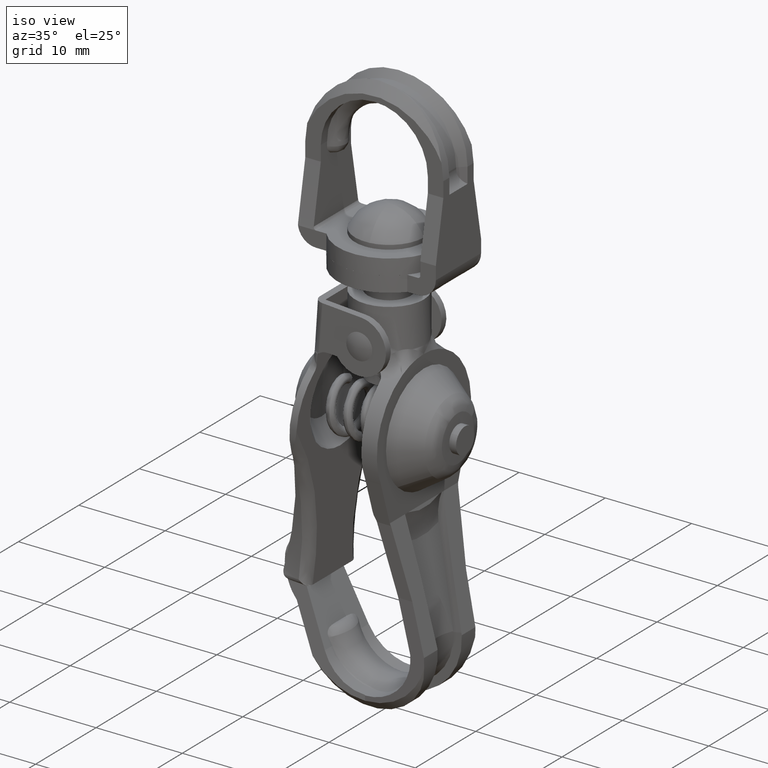
[diagram: clean part render]
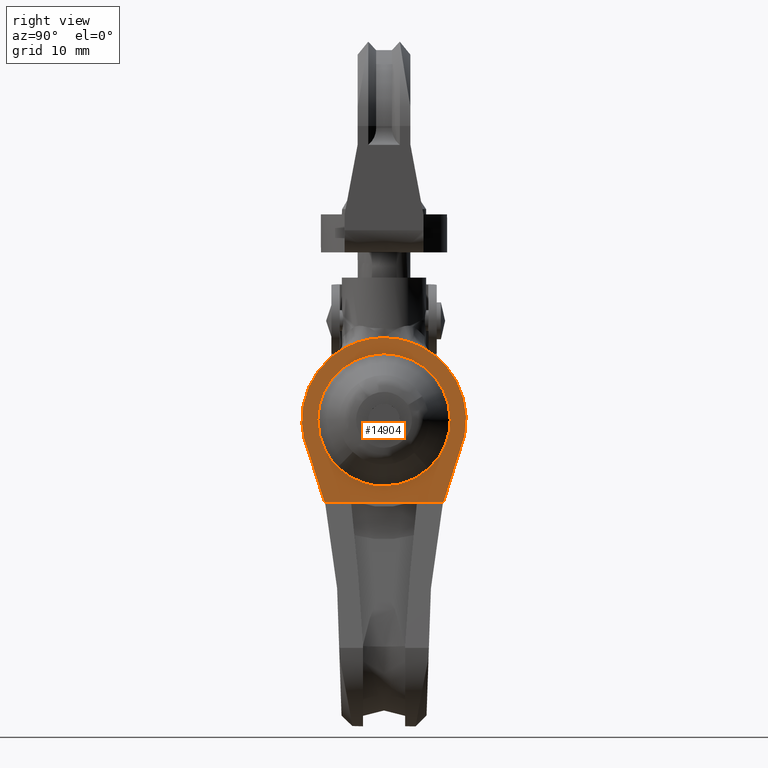
[diagram: tour spotlight — one face highlighted and labeled with its STEP entity id]
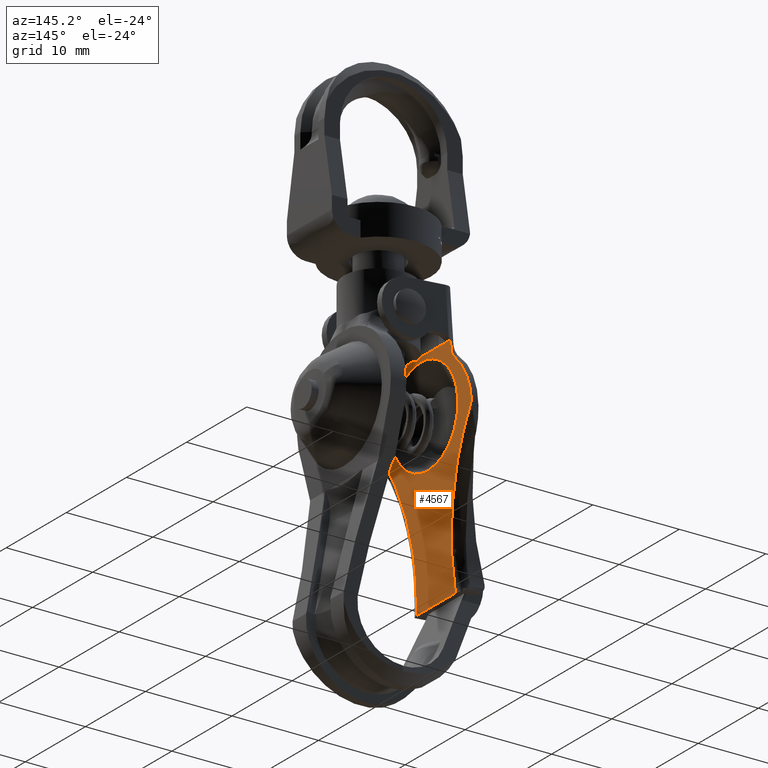
[diagram: tour spotlight — one face highlighted and labeled with its STEP entity id]
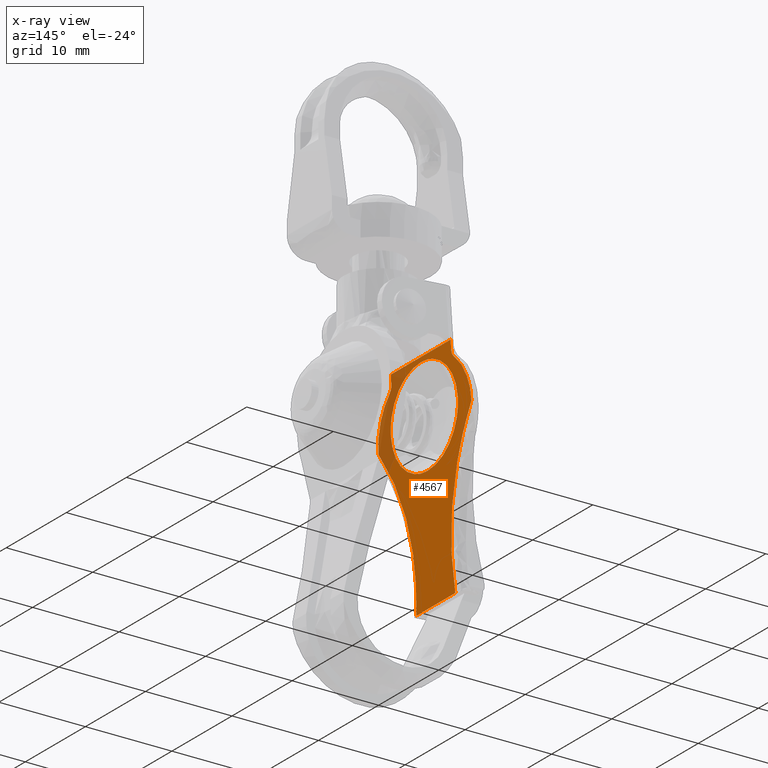
[diagram: x-ray of the same camera — body ghosted, this tour face saturated]
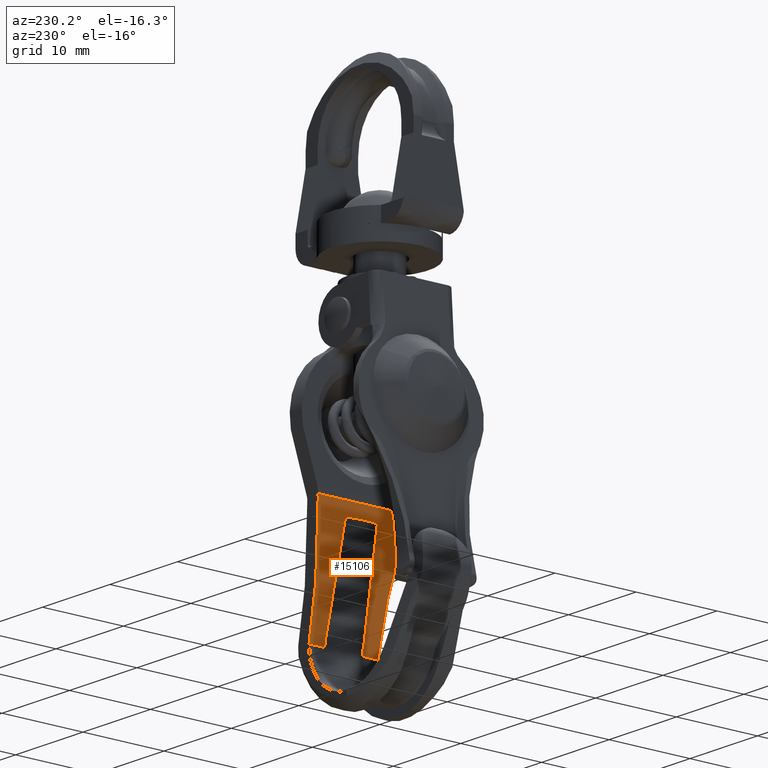
[diagram: tour spotlight — one face highlighted and labeled with its STEP entity id]
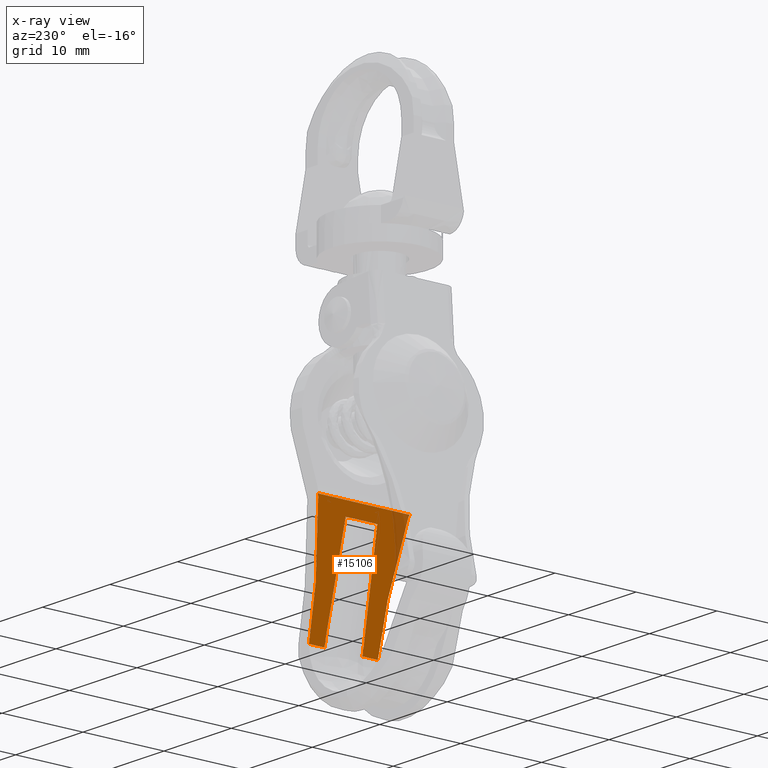
[diagram: x-ray of the same camera — body ghosted, this tour face saturated]
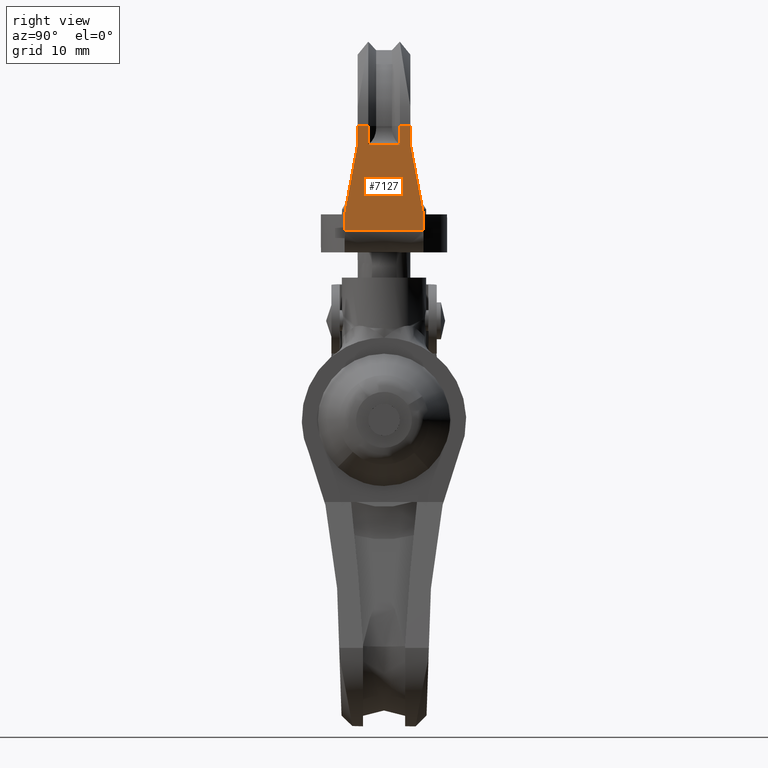
[diagram: tour spotlight — one face highlighted and labeled with its STEP entity id]
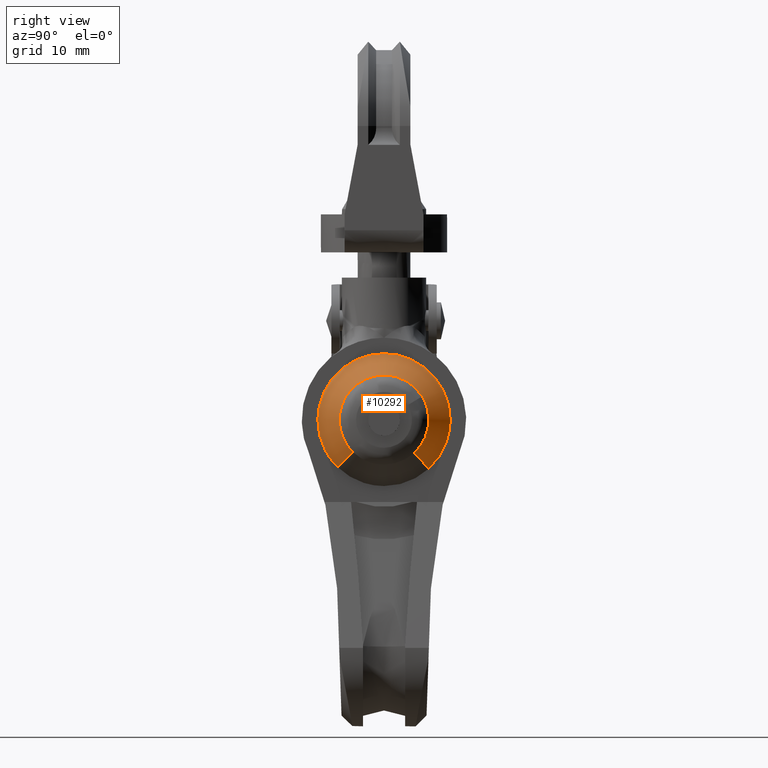
[diagram: tour spotlight — one face highlighted and labeled with its STEP entity id]
A machine part: a face-by-face anatomy tour. The part has 230 B-rep faces; the first image is the clean iso view, then the 5 largest visible faces are spotlighted one at a time (largest first), each with its STEP entity span.

Face 1 — right view, entity #14904. In plain terms, the highlighted face is a freeform B-spline surface patch.
Definition (entity closure, byte-faithful):
#10166=CARTESIAN_POINT('',(4.0,-6.282310757708459,-9.400009797004525));
#10167=VERTEX_POINT('',#10166);
#10168=CARTESIAN_POINT('',(3.999999908098824,-4.381484690174220,-13.902233298943580));
#10169=VERTEX_POINT('',#10168);
#10170=CARTESIAN_POINT('',(4.0,-6.282310757708459,-9.400009797004525));
#10171=CARTESIAN_POINT('',(3.999999987725713,-6.282552166164535,-10.001325196831379));
#10172=CARTESIAN_POINT('',(3.999999965848791,-6.127219019829703,-11.073071832433190));
#10173=CARTESIAN_POINT('',(3.999999934185992,-5.472287995299033,-12.624227518828899));
#10174=CARTESIAN_POINT('',(3.999999916655634,-4.812601486783598,-13.483035847839989));
#10175=CARTESIAN_POINT('',(3.999999908098824,-4.381484690174220,-13.902233298943580));
#10176=B_SPLINE_CURVE_WITH_KNOTS('',3,(#10170,#10171,#10172,#10173,#10174,#10175),.UNSPECIFIED.,.F.,.U.,(4,1,1,4),(0.000000019860854,1.803899093483449,3.215626579584005,5.019525653221613),.UNSPECIFIED.);
#10177=EDGE_CURVE('',#10167,#10169,#10176,.T.);
#10240=CARTESIAN_POINT('',(4.000000091585284,4.244267453788509,-14.031814153131190));
#10241=VERTEX_POINT('',#10240);
#10247=CARTESIAN_POINT('',(4.0,6.282310757708459,-9.400008202995997));
#10248=VERTEX_POINT('',#10247);
#10249=CARTESIAN_POINT('',(4.000000091585284,4.244267453788509,-14.031814153131190));
#10250=CARTESIAN_POINT('',(4.000000087599374,4.464263719303781,-13.830231854269810));
#10251=CARTESIAN_POINT('',(4.000000077834865,4.931574780994437,-13.336404537354341));
#10252=CARTESIAN_POINT('',(4.000000062233324,5.466593794066007,-12.547377391993130));
#10253=CARTESIAN_POINT('',(4.000000043757398,5.906973635297845,-11.612981387766309));
#10254=CARTESIAN_POINT('',(4.000000023600149,6.205621039893044,-10.593554304155340));
#10255=CARTESIAN_POINT('',(4.000000008045609,6.282361475271343,-9.806904192740959));
#10256=CARTESIAN_POINT('',(4.0,6.282310757708459,-9.400008202995997));
#10257=B_SPLINE_CURVE_WITH_KNOTS('',3,(#10249,#10250,#10251,#10252,#10253,#10254,#10255,#10256),.UNSPECIFIED.,.F.,.U.,(4,1,1,1,1,4),(0.000000019615642,0.895166538569844,2.034483611414755,2.848257183194273,3.987582912513413,5.208269949920592),.UNSPECIFIED.);
#10258=EDGE_CURVE('',#10241,#10248,#10257,.T.);
#10260=CARTESIAN_POINT('',(4.0,0.0,-3.117698242291691));
#10261=VERTEX_POINT('',#10260);
#10262=CARTESIAN_POINT('',(4.0,6.282310757708459,-9.400008202995997));
#10263=CARTESIAN_POINT('',(4.000000000000008,6.282459223600674,-8.886020877158636));
#10264=CARTESIAN_POINT('',(3.999999999999994,6.190308231705976,-8.140841201798764));
#10265=CARTESIAN_POINT('',(4.000000000000003,5.862535167656848,-7.083761198941629));
#10266=CARTESIAN_POINT('',(4.0,5.410454425298866,-6.127704132944793));
#10267=CARTESIAN_POINT('',(4.000000000000001,4.732744271155975,-5.213968387805409));
#10268=CARTESIAN_POINT('',(3.999999999999997,3.920896995665570,-4.459874097404843));
#10269=CARTESIAN_POINT('',(4.000000000000002,3.152402630003380,-3.939539182630027));
#10270=CARTESIAN_POINT('',(3.999999999999987,2.223759935391784,-3.493278047729835));
#10271=CARTESIAN_POINT('',(4.000000000000042,1.182123109955919,-3.191241499028454));
#10272=CARTESIAN_POINT('',(3.999999999999969,0.385477415637908,-3.117658640468805));
#10273=CARTESIAN_POINT('',(4.0,0.0,-3.117698242291691));
#10274=B_SPLINE_CURVE_WITH_KNOTS('',3,(#10262,#10263,#10264,#10265,#10266,#10267,#10268,#10269,#10270,#10271,#10272,#10273),.UNSPECIFIED.,.F.,.U.,(4,1,1,1,1,1,1,1,1,4),(0.000000071187536,1.541915364638282,2.235784921109220,3.315134190525560,4.702889801432589,5.627988978707870,6.630247569106126,7.478316299314182,8.711857471058385,9.868292131745784),.UNSPECIFIED.);
#10275=EDGE_CURVE('',#10248,#10261,#10274,.T.);
#10277=CARTESIAN_POINT('',(4.0,0.0,-3.117698242291691));
#10278=CARTESIAN_POINT('',(3.999999999999987,-0.616807176497829,-3.117390773140198));
#10279=CARTESIAN_POINT('',(4.000000000000014,-1.618848871377278,-3.266578945817832));
#10280=CARTESIAN_POINT('',(3.999999999999993,-3.005272125220711,-3.830885493932853));
#10281=CARTESIAN_POINT('',(4.000000000000016,-4.183703495019237,-4.628623076048933));
#10282=CARTESIAN_POINT('',(3.999999999999968,-5.151545510485970,-5.709831441024777));
#10283=CARTESIAN_POINT('',(4.000000000000049,-5.749094976638916,-6.795773063566027));
#10284=CARTESIAN_POINT('',(3.999999999999940,-6.167003015150018,-7.986690967143487));
#10285=CARTESIAN_POINT('',(4.000000000000072,-6.282524288068323,-8.834617193555070));
#10286=CARTESIAN_POINT('',(4.0,-6.282310757708459,-9.400009797004525));
#10287=B_SPLINE_CURVE_WITH_KNOTS('',3,(#10277,#10278,#10279,#10280,#10281,#10282,#10283,#10284,#10285,#10286),.UNSPECIFIED.,.F.,.U.,(4,1,1,1,1,1,1,4),(0.000000070909206,1.850302955480803,3.006748045116300,4.471581653161652,6.090581314328082,7.324122598240320,8.172191405664236,9.868293030160988),.UNSPECIFIED.);
#10288=EDGE_CURVE('',#10261,#10167,#10287,.T.);
#10307=CARTESIAN_POINT('',(4.0,0.0,-15.682319757708710));
#10308=VERTEX_POINT('',#10307);
#10309=CARTESIAN_POINT('',(3.999999908098824,-4.381484690174220,-13.902233298943580));
#10310=CARTESIAN_POINT('',(3.999999914930615,-4.055772409627495,-14.219336172336559));
#10311=CARTESIAN_POINT('',(3.999999926268380,-3.515231051732872,-14.641500770166230));
#10312=CARTESIAN_POINT('',(3.999999945350660,-2.605465450565364,-15.139055767119000));
#10313=CARTESIAN_POINT('',(3.999999968220213,-1.515133570677433,-15.551786206494951));
#10314=CARTESIAN_POINT('',(3.999999987816475,-0.580862436599336,-15.682524203705160));
#10315=CARTESIAN_POINT('',(4.0,0.0,-15.682319757708710));
#10316=B_SPLINE_CURVE_WITH_KNOTS('',3,(#10309,#10310,#10311,#10312,#10313,#10314,#10315),.UNSPECIFIED.,.F.,.U.,(4,1,1,1,4),(0.000000019911540,1.363716158257331,2.045577113063966,3.106239663768498,4.848766390766880),.UNSPECIFIED.);
#10317=EDGE_CURVE('',#10169,#10308,#10316,.T.);
#10319=CARTESIAN_POINT('',(4.0,0.0,-15.682319757708710));
#10320=CARTESIAN_POINT('',(4.000000012569972,0.582520521405747,-15.682506361541400));
#10321=CARTESIAN_POINT('',(4.000000035611611,1.650322197353102,-15.532740895851550));
#10322=CARTESIAN_POINT('',(4.000000066769608,3.094253267504583,-14.932256087635800));
#10323=CARTESIAN_POINT('',(4.000000083863873,3.886439846863292,-14.359834063416359));
#10324=CARTESIAN_POINT('',(4.000000091585284,4.244267453788509,-14.031814153131190));
#10325=B_SPLINE_CURVE_WITH_KNOTS('',3,(#10319,#10320,#10321,#10322,#10323,#10324),.UNSPECIFIED.,.F.,.U.,(4,1,1,4),(0.000000019174023,1.747509381140115,3.203766226647398,4.660023797411585),.UNSPECIFIED.);
#10326=EDGE_CURVE('',#10308,#10241,#10325,.T.);
#11049=CARTESIAN_POINT('',(3.999999999999910,2.608254958142945,-17.200009000000200));
#11050=VERTEX_POINT('',#11049);
#11058=CARTESIAN_POINT('',(3.999999999999910,-2.608254958142945,-17.200009000000200));
#11059=VERTEX_POINT('',#11058);
#11094=CARTESIAN_POINT('',(4.0,3.131505772549280,-17.200009000000200));
#11095=VERTEX_POINT('',#11094);
#11170=CARTESIAN_POINT('',(4.0,-3.131517695079855,-17.200009000000200));
#11171=VERTEX_POINT('',#11170);
#11207=CARTESIAN_POINT('',(3.999999999999910,2.608254958142945,-17.200009000000200));
#11208=CARTESIAN_POINT('',(4.0,3.131505772549280,-17.200009000000200));
#11209=QUASI_UNIFORM_CURVE('',1,(#11207,#11208),.UNSPECIFIED.,.F.,.U.);
#11210=EDGE_CURVE('',#11050,#11095,#11209,.T.);
#11222=CARTESIAN_POINT('',(4.0,-3.131517695079855,-17.200009000000200));
#11223=CARTESIAN_POINT('',(3.999999999999910,-2.608254958142945,-17.200009000000200));
#11224=QUASI_UNIFORM_CURVE('',1,(#11222,#11223),.UNSPECIFIED.,.F.,.U.);
#11225=EDGE_CURVE('',#11171,#11059,#11224,.T.);
#13511=CARTESIAN_POINT('',(4.0,-3.559455147856810,-2.459527817085305));
#13512=VERTEX_POINT('',#13511);
#13590=CARTESIAN_POINT('',(4.0,0.0,-1.600009000000195));
#13591=VERTEX_POINT('',#13590);
#13592=CARTESIAN_POINT('',(4.0,0.0,-1.600009000000195));
#13593=CARTESIAN_POINT('',(4.000000000000013,-0.635301669824627,-1.599844299324102));
#13594=CARTESIAN_POINT('',(3.999999999999981,-1.867303544148489,-1.751432026261389));
#13595=CARTESIAN_POINT('',(4.000000000000005,-3.028467967556760,-2.187079070168278));
#13596=CARTESIAN_POINT('',(4.0,-3.559455147856810,-2.459527817085305));
#13597=B_SPLINE_CURVE_WITH_KNOTS('',3,(#13592,#13593,#13594,#13595,#13596),.UNSPECIFIED.,.F.,.U.,(4,1,4),(6.349063E-009,1.905872101332426,3.696257110565624),.UNSPECIFIED.);
#13598=EDGE_CURVE('',#13591,#13512,#13597,.T.);
#13722=CARTESIAN_POINT('',(4.0,3.559455147856770,-2.459527817085290));
#13723=VERTEX_POINT('',#13722);
#13724=CARTESIAN_POINT('',(4.0,3.559455147856770,-2.459527817085290));
#13725=CARTESIAN_POINT('',(4.000000000000006,2.994235680051950,-2.169467273457617));
#13726=CARTESIAN_POINT('',(3.999999999999980,1.828819961189265,-1.742133624644907));
#13727=CARTESIAN_POINT('',(4.000000000000014,0.596803661992894,-1.599897554448365));
#13728=CARTESIAN_POINT('',(4.0,0.0,-1.600009000000195));
#13729=B_SPLINE_CURVE_WITH_KNOTS('',3,(#13724,#13725,#13726,#13727,#13728),.UNSPECIFIED.,.F.,.U.,(4,1,4),(6.348926E-009,1.905872101332354,3.696257110565583),.UNSPECIFIED.);
#13730=EDGE_CURVE('',#13723,#13591,#13729,.T.);
#14088=CARTESIAN_POINT('',(4.0,7.110999569992010,-12.605267977925820));
#14089=VERTEX_POINT('',#14088);
#14090=CARTESIAN_POINT('',(4.0,7.110999569992010,-12.605267977925820));
#14091=CARTESIAN_POINT('',(4.000000000000004,7.403113635350942,-11.957779636374450));
#14092=CARTESIAN_POINT('',(4.000000000000004,7.746713145779738,-10.791673553235359));
#14093=CARTESIAN_POINT('',(3.999999999999993,7.839179070510871,-9.118976616378383));
#14094=CARTESIAN_POINT('',(4.000000000000007,7.671801408517498,-7.827547969376512));
#14095=CARTESIAN_POINT('',(4.000000000000020,7.291246706536303,-6.520032548742353));
#14096=CARTESIAN_POINT('',(3.999999999999989,6.758360740986817,-5.432256117119735));
#14097=CARTESIAN_POINT('',(4.000000000000012,5.929405763059388,-4.275431112124584));
#14098=CARTESIAN_POINT('',(3.999999999999976,4.938409655798489,-3.289819182324259));
#14099=CARTESIAN_POINT('',(4.000000000000019,4.026643355011308,-2.699049493401312));
#14100=CARTESIAN_POINT('',(4.0,3.559455147856770,-2.459527817085290));
#14101=B_SPLINE_CURVE_WITH_KNOTS('',3,(#14090,#14091,#14092,#14093,#14094,#14095,#14096,#14097,#14098,#14099,#14100),.UNSPECIFIED.,.F.,.U.,(4,1,1,1,1,1,1,1,4),(0.000000047701818,2.130929637993971,3.613337600115781,5.003090593122395,6.022202551318122,7.689893058105985,8.616401732064052,10.284106819913410,11.859134565636211),.UNSPECIFIED.);
#14102=EDGE_CURVE('',#14089,#13723,#14101,.T.);
#14611=CARTESIAN_POINT('',(4.0,5.655064014168990,-17.200009000000200));
#14612=VERTEX_POINT('',#14611);
#14613=CARTESIAN_POINT('',(4.0,7.110999569992010,-12.605267977925820));
#14614=CARTESIAN_POINT('',(4.0,5.655064014168990,-17.200009000000200));
#14615=QUASI_UNIFORM_CURVE('',1,(#14613,#14614),.UNSPECIFIED.,.F.,.U.);
#14616=EDGE_CURVE('',#14089,#14612,#14615,.T.);
#14664=CARTESIAN_POINT('',(4.0,-5.655093261884220,-17.200009000000250));
#14665=VERTEX_POINT('',#14664);
#14671=CARTESIAN_POINT('',(4.0,-7.111058140726910,-12.605138033159440));
#14672=VERTEX_POINT('',#14671);
#14673=CARTESIAN_POINT('',(4.0,-5.655093261884220,-17.200009000000250));
#14674=CARTESIAN_POINT('',(4.0,-7.111058140726910,-12.605138033159440));
#14675=QUASI_UNIFORM_CURVE('',1,(#14673,#14674),.UNSPECIFIED.,.F.,.U.);
#14676=EDGE_CURVE('',#14665,#14672,#14675,.T.);
#14853=CARTESIAN_POINT('',(4.0,-8.577829410457373,-17.979228383997871));
#14854=CARTESIAN_POINT('',(4.0,-8.577829410457373,-0.820788639678491));
#14855=CARTESIAN_POINT('',(4.0,8.577821097231228,-17.979228383997871));
#14856=CARTESIAN_POINT('',(4.0,8.577821097231228,-0.820788639678491));
#14857=B_SPLINE_SURFACE_WITH_KNOTS('',1,1,((#14853,#14855),(#14854,#14856)),.UNSPECIFIED.,.F.,.F.,.U.,(2,2),(2,2),(0.0,17.158439744319381),(0.0,17.155650507688598),.UNSPECIFIED.);
#14858=ORIENTED_EDGE('',*,*,#14102,.T.);
#14859=ORIENTED_EDGE('',*,*,#13730,.T.);
#14860=ORIENTED_EDGE('',*,*,#13598,.T.);
#14861=CARTESIAN_POINT('',(4.0,-3.559455147856810,-2.459527817085305));
#14862=CARTESIAN_POINT('',(4.0,-4.136622796152218,-2.755332754892852));
#14863=CARTESIAN_POINT('',(4.000000000000006,-4.984918672690774,-3.334302293469106));
#14864=CARTESIAN_POINT('',(4.0,-6.112902024661727,-4.483130514430114));
#14865=CARTESIAN_POINT('',(4.0,-6.945485871076445,-5.720970072600924));
#14866=CARTESIAN_POINT('',(4.000000000000003,-7.576082756782206,-7.307480392296463));
#14867=CARTESIAN_POINT('',(3.999999999999997,-7.830535484858508,-8.840490257769254));
#14868=CARTESIAN_POINT('',(4.000000000000002,-7.789460265503381,-10.141419401932160));
#14869=CARTESIAN_POINT('',(3.999999999999997,-7.582509000146570,-11.361065015660371));
#14870=CARTESIAN_POINT('',(4.0,-7.326863420235988,-12.126533511597160));
#14871=CARTESIAN_POINT('',(4.0,-7.111058140726910,-12.605138033159440));
#14872=B_SPLINE_CURVE_WITH_KNOTS('',3,(#14861,#14862,#14863,#14864,#14865,#14866,#14867,#14868,#14869,#14870,#14871),.UNSPECIFIED.,.F.,.U.,(4,1,1,1,1,1,1,1,4),(0.000000047700031,1.945614862676662,3.057397595970235,4.817737746377286,6.392710290191301,8.153049203772552,9.450140837512933,10.283983212917031,11.858992028308300),.UNSPECIFIED.);
#14873=EDGE_CURVE('',#13512,#14672,#14872,.T.);
#14874=ORIENTED_EDGE('',*,*,#14873,.T.);
#14875=ORIENTED_EDGE('',*,*,#14676,.F.);
#14876=CARTESIAN_POINT('',(4.0,-5.655093261884220,-17.200009000000250));
#14877=CARTESIAN_POINT('',(4.0,-3.131517695079855,-17.200009000000200));
#14878=QUASI_UNIFORM_CURVE('',1,(#14876,#14877),.UNSPECIFIED.,.F.,.U.);
#14879=EDGE_CURVE('',#14665,#11171,#14878,.T.);
#14880=ORIENTED_EDGE('',*,*,#14879,.T.);
#14881=ORIENTED_EDGE('',*,*,#11225,.T.);
#14882=CARTESIAN_POINT('',(3.999999999999910,-2.608254958142945,-17.200009000000200));
#14883=CARTESIAN_POINT('',(3.999999999999910,2.608254958142945,-17.200009000000200));
#14884=QUASI_UNIFORM_CURVE('',1,(#14882,#14883),.UNSPECIFIED.,.F.,.U.);
#14885=EDGE_CURVE('',#11059,#11050,#14884,.T.);
#14886=ORIENTED_EDGE('',*,*,#14885,.T.);
#14887=ORIENTED_EDGE('',*,*,#11210,.T.);
#14888=CARTESIAN_POINT('',(4.0,3.131505772549280,-17.200009000000200));
#14889=CARTESIAN_POINT('',(4.0,5.655064014168990,-17.200009000000200));
#14890=QUASI_UNIFORM_CURVE('',1,(#14888,#14889),.UNSPECIFIED.,.F.,.U.);
#14891=EDGE_CURVE('',#11095,#14612,#14890,.T.);
#14892=ORIENTED_EDGE('',*,*,#14891,.T.);
#14893=ORIENTED_EDGE('',*,*,#14616,.F.);
#14894=EDGE_LOOP('',(#14858,#14859,#14860,#14874,#14875,#14880,#14881,#14886,#14887,#14892,#14893));
#14895=FACE_OUTER_BOUND('',#14894,.T.);
#14896=ORIENTED_EDGE('',*,*,#10275,.F.);
#14897=ORIENTED_EDGE('',*,*,#10258,.F.);
#14898=ORIENTED_EDGE('',*,*,#10326,.F.);
#14899=ORIENTED_EDGE('',*,*,#10317,.F.);
#14900=ORIENTED_EDGE('',*,*,#10177,.F.);
#14901=ORIENTED_EDGE('',*,*,#10288,.F.);
#14902=EDGE_LOOP('',(#14896,#14897,#14898,#14899,#14900,#14901));
#14903=FACE_BOUND('',#14902,.T.);
#14904=ADVANCED_FACE('',(#14895,#14903),#14857,.F.);

Face 2 — auxiliary view, entity #4567. An x-ray twin of the same camera follows (body ghosted, this face saturated) — the face is partly hidden behind the body. In plain terms, the highlighted face is a freeform B-spline surface patch.
Definition (entity closure, byte-faithful):
#2290=CARTESIAN_POINT('',(-4.699999926960892,-4.249262095755214,-12.135136823011869));
#2291=VERTEX_POINT('',#2290);
#2297=CARTESIAN_POINT('',(-4.700000000000000,0.0,-14.106616932455630));
#2298=VERTEX_POINT('',#2297);
#2299=CARTESIAN_POINT('',(-4.699999926960892,-4.249262095755214,-12.135136823011869));
#2300=CARTESIAN_POINT('',(-4.699999932828142,-3.907917721639922,-12.539073908333300));
#2301=CARTESIAN_POINT('',(-4.699999945581369,-3.165961998880617,-13.197671364817930));
#2302=CARTESIAN_POINT('',(-4.699999966275907,-1.961996796675910,-13.796469957084110));
#2303=CARTESIAN_POINT('',(-4.699999984417538,-0.906555461902163,-14.059539828701681));
#2304=CARTESIAN_POINT('',(-4.699999995238688,-0.277001250868232,-14.106625598285641));
#2305=CARTESIAN_POINT('',(-4.700000000000000,0.0,-14.106616932455630));
#2306=B_SPLINE_CURVE_WITH_KNOTS('',3,(#2299,#2300,#2301,#2302,#2303,#2304,#2305),.UNSPECIFIED.,.F.,.U.,(4,1,1,1,4),(0.000000021888161,1.586491254625626,2.946327026799142,4.003992130923086,4.835003331236396),.UNSPECIFIED.);
#2307=EDGE_CURVE('',#2291,#2298,#2306,.T.);
#2309=CARTESIAN_POINT('',(-4.700000000000001,5.565097932455599,-8.541518407261645));
#2310=VERTEX_POINT('',#2309);
#2311=CARTESIAN_POINT('',(-4.700000000000000,0.0,-14.106616932455630));
#2312=CARTESIAN_POINT('',(-4.699999999999998,0.364237017933476,-14.106663654072840));
#2313=CARTESIAN_POINT('',(-4.700000000000011,1.001629532195385,-14.043808721457870));
#2314=CARTESIAN_POINT('',(-4.699999999999985,1.859607361198557,-13.806353054068200));
#2315=CARTESIAN_POINT('',(-4.700000000000014,2.717191350092024,-13.432571839887929));
#2316=CARTESIAN_POINT('',(-4.699999999999982,3.555105650584280,-12.872686926663089));
#2317=CARTESIAN_POINT('',(-4.700000000000030,4.310178955611933,-12.108235166196060));
#2318=CARTESIAN_POINT('',(-4.699999999999955,4.827206638337164,-11.354597656808661));
#2319=CARTESIAN_POINT('',(-4.700000000000049,5.222493939456833,-10.531965916782200));
#2320=CARTESIAN_POINT('',(-4.699999999999969,5.495576287551199,-9.611443385658843));
#2321=CARTESIAN_POINT('',(-4.700000000000013,5.565138719901327,-8.905753304884557));
#2322=CARTESIAN_POINT('',(-4.700000000000001,5.565097932455599,-8.541518407261645));
#2323=B_SPLINE_CURVE_WITH_KNOTS('',3,(#2311,#2312,#2313,#2314,#2315,#2316,#2317,#2318,#2319,#2320,#2321,#2322),.UNSPECIFIED.,.F.,.U.,(4,1,1,1,1,1,1,1,1,4),(0.000000082825347,1.092708795406505,1.912243581505662,2.663487401324893,3.892810237536286,4.917190947545786,5.873311815976607,6.624563133884786,7.648986932867148,8.741690574689143),.UNSPECIFIED.);
#2324=EDGE_CURVE('',#2298,#2310,#2323,.T.);
#2326=CARTESIAN_POINT('',(-4.700000000000000,0.0,-2.976421067544369));
#2327=VERTEX_POINT('',#2326);
#2328=CARTESIAN_POINT('',(-4.700000000000001,5.565097932455599,-8.541518407261645));
#2329=CARTESIAN_POINT('',(-4.700000000000012,5.565334843694945,-7.995146747099992));
#2330=CARTESIAN_POINT('',(-4.699999999999999,5.419750900557608,-7.016390329373357));
#2331=CARTESIAN_POINT('',(-4.699999999999994,4.842725404846407,-5.692735691198021));
#2332=CARTESIAN_POINT('',(-4.700000000000019,4.120515757622046,-4.743553026689695));
#2333=CARTESIAN_POINT('',(-4.700000000000023,3.346402298000902,-4.067619814227113));
#2334=CARTESIAN_POINT('',(-4.699999999999963,2.632872392696687,-3.615770734099845));
#2335=CARTESIAN_POINT('',(-4.700000000000067,1.839875416991214,-3.264243489355506));
#2336=CARTESIAN_POINT('',(-4.699999999999905,0.956104620114393,-3.031315077483682));
#2337=CARTESIAN_POINT('',(-4.700000000000059,0.318699863581495,-2.976398120024939));
#2338=CARTESIAN_POINT('',(-4.700000000000000,0.0,-2.976421067544369));
#2339=B_SPLINE_CURVE_WITH_KNOTS('',3,(#2328,#2329,#2330,#2331,#2332,#2333,#2334,#2335,#2336,#2337,#2338),.UNSPECIFIED.,.F.,.U.,(4,1,1,1,1,1,1,1,4),(0.000000083032413,1.639064999653646,2.936666057903187,4.302574649919320,5.190368780572831,6.009909293290786,6.829445949078416,7.785587440111962,8.741689906530686),.UNSPECIFIED.);
#2340=EDGE_CURVE('',#2310,#2327,#2339,.T.);
#2342=CARTESIAN_POINT('',(-4.700000073965660,-3.830760474520223,-4.504739747238347));
#2343=VERTEX_POINT('',#2342);
#2344=CARTESIAN_POINT('',(-4.700000000000000,0.0,-2.976421067544369));
#2345=CARTESIAN_POINT('',(-4.700000008073233,-0.418121801394013,-2.976329954705891));
#2346=CARTESIAN_POINT('',(-4.700000020394470,-1.056250708418042,-3.048704519853371));
#2347=CARTESIAN_POINT('',(-4.700000038777572,-2.008332295908005,-3.327325911825371));
#2348=CARTESIAN_POINT('',(-4.700000056163598,-2.908772705664858,-3.750044072474836));
#2349=CARTESIAN_POINT('',(-4.700000068110693,-3.527525216653646,-4.216863183565867));
#2350=CARTESIAN_POINT('',(-4.700000073965660,-3.830760474520223,-4.504739747238347));
#2351=B_SPLINE_CURVE_WITH_KNOTS('',3,(#2344,#2345,#2346,#2347,#2348,#2349,#2350),.UNSPECIFIED.,.F.,.U.,(4,1,1,1,4),(0.000000022112062,1.254343919885995,1.914528289929805,2.970804563797084,4.225148461557780),.UNSPECIFIED.);
#2352=EDGE_CURVE('',#2327,#2343,#2351,.T.);
#2437=CARTESIAN_POINT('',(-4.700000000000000,-5.565097932455599,-8.541519592738348));
#2438=VERTEX_POINT('',#2437);
#2439=CARTESIAN_POINT('',(-4.700000073965660,-3.830760474520223,-4.504739747238347));
#2440=CARTESIAN_POINT('',(-4.700000068626306,-4.137976278458866,-4.796142557842767));
#2441=CARTESIAN_POINT('',(-4.700000059646423,-4.548426041176421,-5.286232454416825));
#2442=CARTESIAN_POINT('',(-4.700000044340743,-5.033662391601021,-6.121561418178351));
#2443=CARTESIAN_POINT('',(-4.700000025859143,-5.437145143268937,-7.130219578483434));
#2444=CARTESIAN_POINT('',(-4.700000009913986,-5.565319244960505,-8.000451452284322));
#2445=CARTESIAN_POINT('',(-4.700000000000000,-5.565097932455599,-8.541519592738348));
#2446=B_SPLINE_CURVE_WITH_KNOTS('',3,(#2439,#2440,#2441,#2442,#2443,#2444,#2445),.UNSPECIFIED.,.F.,.U.,(4,1,1,1,4),(0.000000022636327,1.270278172085975,1.905420160598949,2.893408575297031,4.516542381720345),.UNSPECIFIED.);
#2447=EDGE_CURVE('',#2343,#2438,#2446,.T.);
#2449=CARTESIAN_POINT('',(-4.700000000000000,-5.565097932455599,-8.541519592738348));
#2450=CARTESIAN_POINT('',(-4.699999988006115,-5.565421675627639,-9.131634560687733));
#2451=CARTESIAN_POINT('',(-4.699999968573635,-5.411518829354144,-10.087735930822470));
#2452=CARTESIAN_POINT('',(-4.699999944254801,-4.881629307623168,-11.284255124349430));
#2453=CARTESIAN_POINT('',(-4.699999932328584,-4.472648301665108,-11.871038163543361));
#2454=CARTESIAN_POINT('',(-4.699999926960892,-4.249262095755214,-12.135136823011869));
#2455=B_SPLINE_CURVE_WITH_KNOTS('',3,(#2449,#2450,#2451,#2452,#2453,#2454),.UNSPECIFIED.,.F.,.U.,(4,1,1,4),(0.000000017219740,1.770221996515776,2.868973568571441,3.906688342577989),.UNSPECIFIED.);
#2456=EDGE_CURVE('',#2438,#2291,#2455,.T.);
#2859=CARTESIAN_POINT('',(-4.700000000000000,3.239909726624515,-27.772362000000101));
#2860=VERTEX_POINT('',#2859);
#2904=CARTESIAN_POINT('',(-4.700000000000000,7.731396394530660,-9.672229549134801));
#2905=VERTEX_POINT('',#2904);
#2925=CARTESIAN_POINT('',(-4.700000000000000,3.239909726624515,-27.772362000000101));
#2926=CARTESIAN_POINT('',(-4.700000000000006,2.992116297160789,-25.997982517896009));
#2927=CARTESIAN_POINT('',(-4.700000000000002,2.906770916938120,-23.246430522276299));
#2928=CARTESIAN_POINT('',(-4.700000000000006,3.428497975899189,-19.343317236856191));
#2929=CARTESIAN_POINT('',(-4.699999999999988,4.201351078059480,-16.451213624380639));
#2930=CARTESIAN_POINT('',(-4.700000000000054,5.562194306668626,-13.077771840373190));
#2931=CARTESIAN_POINT('',(-4.699999999999974,6.799386542222525,-10.963540630753471));
#2932=CARTESIAN_POINT('',(-4.700000000000000,7.731396394530660,-9.672229549134801));
#2933=B_SPLINE_CURVE_WITH_KNOTS('',3,(#2925,#2926,#2927,#2928,#2929,#2930,#2931,#2932),.UNSPECIFIED.,.F.,.U.,(4,1,1,1,1,4),(9.934606E-009,5.374703603967888,8.211353374381391,11.794473868233100,14.332536963769220,19.110049281713732),.UNSPECIFIED.);
#2934=EDGE_CURVE('',#2860,#2905,#2933,.T.);
#2969=CARTESIAN_POINT('',(-4.700000000000000,-3.239909726624525,-27.772362000000101));
#2970=VERTEX_POINT('',#2969);
#2978=CARTESIAN_POINT('',(-4.700000000000000,-7.731399461377510,-9.672225298801189));
#2979=VERTEX_POINT('',#2978);
#2980=CARTESIAN_POINT('',(-4.700000000000000,-7.731399461377510,-9.672225298801189));
#2981=CARTESIAN_POINT('',(-4.699999999999995,-7.003346520313648,-10.681104441553080));
#2982=CARTESIAN_POINT('',(-4.700000000000006,-5.724347773935593,-12.765250157452931));
#2983=CARTESIAN_POINT('',(-4.699999999999995,-4.173625848945585,-16.388977630858570));
#2984=CARTESIAN_POINT('',(-4.699999999999988,-3.319308417566068,-19.832085005644391));
#2985=CARTESIAN_POINT('',(-4.700000000000062,-2.914431065849807,-23.747781045282601));
#2986=CARTESIAN_POINT('',(-4.699999999999978,-3.019755144263978,-26.195135542299930));
#2987=CARTESIAN_POINT('',(-4.700000000000000,-3.239909726624525,-27.772362000000101));
#2988=B_SPLINE_CURVE_WITH_KNOTS('',3,(#2980,#2981,#2982,#2983,#2984,#2985,#2986,#2987),.UNSPECIFIED.,.F.,.U.,(4,1,1,1,1,4),(9.937892E-009,3.732430505483553,7.315577429857642,11.794477103085530,14.332540894738250,19.110054523004582),.UNSPECIFIED.);
#2989=EDGE_CURVE('',#2979,#2970,#2988,.T.);
#3092=CARTESIAN_POINT('',(-4.700000000000000,-4.979795897113280,-3.506155721737450));
#3093=VERTEX_POINT('',#3092);
#3094=CARTESIAN_POINT('',(-4.700000000000000,-5.332761139936580,-4.286219198872191));
#3095=VERTEX_POINT('',#3094);
#3096=CARTESIAN_POINT('',(-4.700000000000000,-4.979795897113280,-3.506155721737450));
#3097=CARTESIAN_POINT('',(-4.699999999999998,-4.979248000476573,-3.662520138137680));
#3098=CARTESIAN_POINT('',(-4.700000000000008,-5.047100755756099,-3.956605787977030));
#3099=CARTESIAN_POINT('',(-4.699999999999997,-5.228865928719370,-4.195454473379677));
#3100=CARTESIAN_POINT('',(-4.700000000000000,-5.332761139936580,-4.286219198872191));
#3101=B_SPLINE_CURVE_WITH_KNOTS('',3,(#3096,#3097,#3098,#3099,#3100),.UNSPECIFIED.,.F.,.U.,(4,1,4),(0.000000052691409,0.468960591273866,0.882771037230586),.UNSPECIFIED.);
#3102=EDGE_CURVE('',#3093,#3095,#3101,.T.);
#3269=CARTESIAN_POINT('',(-4.700000000000000,4.979793897113219,-3.506156584903440));
#3270=VERTEX_POINT('',#3269);
#3296=CARTESIAN_POINT('',(-4.700000000000000,5.332759014936540,-4.286219961853270));
#3297=VERTEX_POINT('',#3296);
#3298=CARTESIAN_POINT('',(-4.700000000000000,5.332759014936540,-4.286219961853270));
#3299=CARTESIAN_POINT('',(-4.699999999999999,5.228950657482556,-4.195388679559120));
#3300=CARTESIAN_POINT('',(-4.700000000000001,5.047199940215996,-3.956550638753997));
#3301=CARTESIAN_POINT('',(-4.700000000000006,4.979396048234783,-3.662493815196271));
#3302=CARTESIAN_POINT('',(-4.700000000000000,4.979793897113219,-3.506156584903440));
#3303=B_SPLINE_CURVE_WITH_KNOTS('',3,(#3298,#3299,#3300,#3301,#3302),.UNSPECIFIED.,.F.,.U.,(4,1,4),(0.000000052375318,0.413771772269819,0.882689958082987),.UNSPECIFIED.);
#3304=EDGE_CURVE('',#3297,#3270,#3303,.T.);
#3338=CARTESIAN_POINT('',(-4.700000000000000,-4.979795897113280,-2.469963805232120));
#3339=VERTEX_POINT('',#3338);
#3340=CARTESIAN_POINT('',(-4.700000000000000,-4.979795897113280,-2.469963805232120));
#3341=CARTESIAN_POINT('',(-4.700000000000000,-4.979795897113280,-3.506155721737450));
#3342=QUASI_UNIFORM_CURVE('',1,(#3340,#3341),.UNSPECIFIED.,.F.,.U.);
#3343=EDGE_CURVE('',#3339,#3093,#3342,.T.);
#3389=CARTESIAN_POINT('',(-4.700000000000000,4.979793897113230,-2.469963805232120));
#3390=VERTEX_POINT('',#3389);
#3391=CARTESIAN_POINT('',(-4.700000000000000,4.979793897113219,-3.506156584903440));
#3392=CARTESIAN_POINT('',(-4.700000000000000,4.979793897113230,-2.469963805232120));
#3393=QUASI_UNIFORM_CURVE('',1,(#3391,#3392),.UNSPECIFIED.,.F.,.U.);
#3394=EDGE_CURVE('',#3270,#3390,#3393,.T.);
#3707=CARTESIAN_POINT('',(-4.700000000000000,-4.200000000000315,-2.469963805236120));
#3708=VERTEX_POINT('',#3707);
#3746=CARTESIAN_POINT('',(-4.700000000000000,4.199997999999815,-2.469963805236120));
#3747=VERTEX_POINT('',#3746);
#3829=CARTESIAN_POINT('',(-4.700000000000000,4.199997999999815,-2.469963805236120));
#3830=CARTESIAN_POINT('',(-4.700000000000000,-4.200000000000315,-2.469963805236120));
#3831=QUASI_UNIFORM_CURVE('',1,(#3829,#3830),.UNSPECIFIED.,.F.,.U.);
#3832=EDGE_CURVE('',#3747,#3708,#3831,.T.);
#4158=CARTESIAN_POINT('',(-4.700000000000000,-4.200000000000315,-2.469963805236120));
#4159=CARTESIAN_POINT('',(-4.700000000000000,-4.979795897113280,-2.469963805232120));
#4160=QUASI_UNIFORM_CURVE('',1,(#4158,#4159),.UNSPECIFIED.,.F.,.U.);
#4161=EDGE_CURVE('',#3708,#3339,#4160,.T.);
#4182=CARTESIAN_POINT('',(-4.700000000000000,4.979793897113230,-2.469963805232120));
#4183=CARTESIAN_POINT('',(-4.700000000000000,4.199997999999815,-2.469963805236120));
#4184=QUASI_UNIFORM_CURVE('',1,(#4182,#4183),.UNSPECIFIED.,.F.,.U.);
#4185=EDGE_CURVE('',#3390,#3747,#4184,.T.);
#4298=CARTESIAN_POINT('',(-4.700000000000000,-7.731399461377510,-9.672225298801189));
#4299=CARTESIAN_POINT('',(-4.699999999999999,-7.737889653908590,-9.260217633559023));
#4300=CARTESIAN_POINT('',(-4.700000000000010,-7.666437830830978,-8.276348149590790));
#4301=CARTESIAN_POINT('',(-4.699999999999980,-7.247200129480238,-6.835154358026952));
#4302=CARTESIAN_POINT('',(-4.700000000000035,-6.447448105408100,-5.419278940141067));
#4303=CARTESIAN_POINT('',(-4.699999999999976,-5.738980289646424,-4.640276397515229));
#4304=CARTESIAN_POINT('',(-4.700000000000000,-5.332761139936580,-4.286219198872191));
#4305=B_SPLINE_CURVE_WITH_KNOTS('',3,(#4298,#4299,#4300,#4301,#4302,#4303,#4304),.UNSPECIFIED.,.F.,.U.,(4,1,1,1,4),(0.000000012051494,1.236194137481041,2.947856890538198,4.469325125319093,6.085889829111908),.UNSPECIFIED.);
#4306=EDGE_CURVE('',#2979,#3095,#4305,.T.);
#4326=CARTESIAN_POINT('',(-4.700000000000000,5.332759014936540,-4.286219961853270));
#4327=CARTESIAN_POINT('',(-4.700000000000012,5.738970190445698,-4.640283758181726));
#4328=CARTESIAN_POINT('',(-4.699999999999978,6.404522824937704,-5.372063034258615));
#4329=CARTESIAN_POINT('',(-4.700000000000022,7.093870204130865,-6.555006534741118));
#4330=CARTESIAN_POINT('',(-4.699999999999984,7.607954741272897,-7.958565829820037));
#4331=CARTESIAN_POINT('',(-4.700000000000016,7.742125502480931,-9.006639957333555));
#4332=CARTESIAN_POINT('',(-4.700000000000000,7.731396394530660,-9.672229549134801));
#4333=B_SPLINE_CURVE_WITH_KNOTS('',3,(#4326,#4327,#4328,#4329,#4330,#4331,#4332),.UNSPECIFIED.,.F.,.U.,(4,1,1,1,4),(0.000000012052106,1.616565536625616,2.947858387261695,4.088953870604007,6.085892919109572),.UNSPECIFIED.);
#4334=EDGE_CURVE('',#3297,#2905,#4333,.T.);
#4505=CARTESIAN_POINT('',(-4.700000000000000,3.239909726624515,-27.772362000000101));
#4506=CARTESIAN_POINT('',(-4.700000000000000,-3.239909726624525,-27.772362000000101));
#4507=QUASI_UNIFORM_CURVE('',1,(#4505,#4506),.UNSPECIFIED.,.F.,.U.);
#4508=EDGE_CURVE('',#2860,#2970,#4507,.T.);
#4540=CARTESIAN_POINT('',(-4.700000000000000,8.504089380165961,-1.206109064444416));
#4541=CARTESIAN_POINT('',(-4.700000000000000,-8.504045027891138,-1.206109064444416));
#4542=CARTESIAN_POINT('',(-4.700000000000000,8.504089380165961,-29.036217419451020));
#4543=CARTESIAN_POINT('',(-4.700000000000000,-8.504045027891138,-29.036217419451020));
#4544=B_SPLINE_SURFACE_WITH_KNOTS('',1,1,((#4540,#4542),(#4541,#4543)),.UNSPECIFIED.,.F.,.F.,.U.,(2,2),(2,2),(0.0,17.008134408057099),(0.0,27.830108355006601),.UNSPECIFIED.);
#4545=ORIENTED_EDGE('',*,*,#4306,.F.);
#4546=ORIENTED_EDGE('',*,*,#2989,.T.);
#4547=ORIENTED_EDGE('',*,*,#4508,.F.);
#4548=ORIENTED_EDGE('',*,*,#2934,.T.);
#4549=ORIENTED_EDGE('',*,*,#4334,.F.);
#4550=ORIENTED_EDGE('',*,*,#3304,.T.);
#4551=ORIENTED_EDGE('',*,*,#3394,.T.);
#4552=ORIENTED_EDGE('',*,*,#4185,.T.);
#4553=ORIENTED_EDGE('',*,*,#3832,.T.);
#4554=ORIENTED_EDGE('',*,*,#4161,.T.);
#4555=ORIENTED_EDGE('',*,*,#3343,.T.);
#4556=ORIENTED_EDGE('',*,*,#3102,.T.);
#4557=EDGE_LOOP('',(#4545,#4546,#4547,#4548,#4549,#4550,#4551,#4552,#4553,#4554,#4555,#4556));
#4558=FACE_OUTER_BOUND('',#4557,.T.);
#4559=ORIENTED_EDGE('',*,*,#2324,.F.);
#4560=ORIENTED_EDGE('',*,*,#2307,.F.);
#4561=ORIENTED_EDGE('',*,*,#2456,.F.);
#4562=ORIENTED_EDGE('',*,*,#2447,.F.);
#4563=ORIENTED_EDGE('',*,*,#2352,.F.);
#4564=ORIENTED_EDGE('',*,*,#2340,.F.);
#4565=EDGE_LOOP('',(#4559,#4560,#4561,#4562,#4563,#4564));
#4566=FACE_BOUND('',#4565,.T.);
#4567=ADVANCED_FACE('',(#4558,#4566),#4544,.T.);

Face 3 — auxiliary view, entity #15106. An x-ray twin of the same camera follows (body ghosted, this face saturated) — the face is partly hidden behind the body. In plain terms, the highlighted face is a freeform B-spline surface patch.
Definition (entity closure, byte-faithful):
#12710=CARTESIAN_POINT('',(5.244801804046450,-2.294434478214925,-30.480513803963500));
#12711=VERTEX_POINT('',#12710);
#12720=CARTESIAN_POINT('',(5.244801804046440,-2.351537033079890,-30.480513803963451));
#12721=VERTEX_POINT('',#12720);
#12722=CARTESIAN_POINT('',(5.244801804046450,-2.294434478214925,-30.480513803963500));
#12723=CARTESIAN_POINT('',(5.244801804046440,-2.351537033079890,-30.480513803963451));
#12724=QUASI_UNIFORM_CURVE('',1,(#12722,#12723),.UNSPECIFIED.,.F.,.U.);
#12725=EDGE_CURVE('',#12711,#12721,#12724,.T.);
#12743=CARTESIAN_POINT('',(5.244801804046420,2.351522033080275,-30.480513803963451));
#12744=VERTEX_POINT('',#12743);
#12755=CARTESIAN_POINT('',(5.244801804046450,2.294419478215335,-30.480513803963500));
#12756=VERTEX_POINT('',#12755);
#12757=CARTESIAN_POINT('',(5.244801804046420,2.351522033080275,-30.480513803963451));
#12758=CARTESIAN_POINT('',(5.244801804046450,2.294419478215335,-30.480513803963500));
#12759=QUASI_UNIFORM_CURVE('',1,(#12757,#12758),.UNSPECIFIED.,.F.,.U.);
#12760=EDGE_CURVE('',#12744,#12756,#12759,.T.);
#12788=CARTESIAN_POINT('',(2.714611556111920,-1.955615449096945,-18.747732627071802));
#12789=VERTEX_POINT('',#12788);
#12790=CARTESIAN_POINT('',(5.244801804046490,-2.351537033079878,-30.480513803963490));
#12791=CARTESIAN_POINT('',(3.863416343993329,-2.160543378290121,-24.074871644456177));
#12792=CARTESIAN_POINT('',(2.714611556111920,-1.955615449096945,-18.747732627071802));
#12800=(BOUNDED_CURVE()B_SPLINE_CURVE(2,(#12790,#12791,#12792),.UNSPECIFIED.,.F.,.U.)CURVE()GEOMETRIC_REPRESENTATION_ITEM()QUASI_UNIFORM_CURVE()RATIONAL_B_SPLINE_CURVE((1.0,0.998386334815300,1.0))REPRESENTATION_ITEM(''));
#12801=EDGE_CURVE('',#12721,#12789,#12800,.T.);
#12803=CARTESIAN_POINT('',(2.714611556111935,1.955600449097365,-18.747732627071802));
#12804=VERTEX_POINT('',#12803);
#12815=CARTESIAN_POINT('',(2.714611556111968,1.955600449097376,-18.747732627071770));
#12816=CARTESIAN_POINT('',(3.863416343993405,2.160528378290537,-24.074871644456511));
#12817=CARTESIAN_POINT('',(5.244801804046483,2.351522033080284,-30.480513803963468));
#12825=(BOUNDED_CURVE()B_SPLINE_CURVE(2,(#12815,#12816,#12817),.UNSPECIFIED.,.F.,.U.)CURVE()GEOMETRIC_REPRESENTATION_ITEM()QUASI_UNIFORM_CURVE()RATIONAL_B_SPLINE_CURVE((1.0,0.998386334815381,1.0))REPRESENTATION_ITEM(''));
#12826=EDGE_CURVE('',#12804,#12744,#12825,.T.);
#12844=CARTESIAN_POINT('',(2.714611556111935,1.955600449097365,-18.747732627071802));
#12845=CARTESIAN_POINT('',(2.714611556111920,-1.955615449096945,-18.747732627071802));
#12846=QUASI_UNIFORM_CURVE('',1,(#12844,#12845),.UNSPECIFIED.,.F.,.U.);
#12847=EDGE_CURVE('',#12804,#12789,#12846,.T.);
#12909=CARTESIAN_POINT('',(5.388414534095780,-2.371269370228240,-31.146462436585200));
#12910=VERTEX_POINT('',#12909);
#12932=CARTESIAN_POINT('',(5.388414534095780,-2.371269370228240,-31.146462436585200));
#12933=CARTESIAN_POINT('',(5.341094378626845,-2.327074199716955,-30.927033470788359));
#12934=CARTESIAN_POINT('',(5.293008403259313,-2.301344529911866,-30.704053310650121));
#12935=CARTESIAN_POINT('',(5.244801804046450,-2.294434478214925,-30.480513803963500));
#12936=B_SPLINE_CURVE_WITH_KNOTS('',3,(#12932,#12933,#12934,#12935),.UNSPECIFIED.,.F.,.U.,(4,4),(7.334079E-010,0.686349811888093),.UNSPECIFIED.);
#12937=EDGE_CURVE('',#12910,#12711,#12936,.T.);
#12942=CARTESIAN_POINT('',(5.388414534095780,2.371254370228645,-31.146462436585200));
#12943=VERTEX_POINT('',#12942);
#12944=CARTESIAN_POINT('',(5.244801804046450,2.294419478215335,-30.480513803963500));
#12945=CARTESIAN_POINT('',(5.293003462440704,2.301729722087898,-30.704030399509900));
#12946=CARTESIAN_POINT('',(5.341080599559772,2.327448912991473,-30.926969575680459));
#12947=CARTESIAN_POINT('',(5.388414534095780,2.371254370228645,-31.146462436585200));
#12948=B_SPLINE_CURVE_WITH_KNOTS('',3,(#12944,#12945,#12946,#12947),.UNSPECIFIED.,.F.,.U.,(4,4),(6.730932E-010,0.686317425405222),.UNSPECIFIED.);
#12949=EDGE_CURVE('',#12756,#12943,#12948,.T.);
#13998=CARTESIAN_POINT('',(2.380842846999110,-5.655093261884289,-17.200009000000250));
#13999=VERTEX_POINT('',#13998);
#14014=CARTESIAN_POINT('',(2.380842846999110,5.655064014169030,-17.200009000000250));
#14015=VERTEX_POINT('',#14014);
#14023=CARTESIAN_POINT('',(2.380842846999110,-5.655093261884289,-17.200009000000250));
#14024=CARTESIAN_POINT('',(2.380842846999110,5.655064014169030,-17.200009000000250));
#14025=QUASI_UNIFORM_CURVE('',1,(#14023,#14024),.UNSPECIFIED.,.F.,.U.);
#14026=EDGE_CURVE('',#13999,#14015,#14025,.T.);
#14583=CARTESIAN_POINT('',(4.150347243804036,4.452118000000104,-25.405403000000000));
#14584=VERTEX_POINT('',#14583);
#14590=CARTESIAN_POINT('',(2.443734763434755,5.562653000000130,-17.491646000000049));
#14591=VERTEX_POINT('',#14590);
#14592=CARTESIAN_POINT('',(4.150347243804036,4.452118000000104,-25.405403000000000));
#14593=CARTESIAN_POINT('',(2.443734763434755,5.562653000000130,-17.491646000000049));
#14594=QUASI_UNIFORM_CURVE('',1,(#14592,#14593),.UNSPECIFIED.,.F.,.U.);
#14595=EDGE_CURVE('',#14584,#14591,#14594,.T.);
#14624=CARTESIAN_POINT('',(2.443734763434755,5.562653000000130,-17.491646000000049));
#14625=CARTESIAN_POINT('',(2.380842846999110,5.655064014169030,-17.200009000000250));
#14626=QUASI_UNIFORM_CURVE('',1,(#14624,#14625),.UNSPECIFIED.,.F.,.U.);
#14627=EDGE_CURVE('',#14591,#14015,#14626,.T.);
#14650=CARTESIAN_POINT('',(2.443734763434990,-5.562682999999930,-17.491646000000099));
#14651=VERTEX_POINT('',#14650);
#14652=CARTESIAN_POINT('',(2.380842846999110,-5.655093261884289,-17.200009000000250));
#14653=CARTESIAN_POINT('',(2.443734763434990,-5.562682999999930,-17.491646000000099));
#14654=QUASI_UNIFORM_CURVE('',1,(#14652,#14653),.UNSPECIFIED.,.F.,.U.);
#14655=EDGE_CURVE('',#13999,#14651,#14654,.T.);
#14699=CARTESIAN_POINT('',(4.150377804690329,-4.452128113274415,-25.405544714320001));
#14700=VERTEX_POINT('',#14699);
#14701=CARTESIAN_POINT('',(2.443734763434990,-5.562682999999930,-17.491646000000099));
#14702=CARTESIAN_POINT('',(4.150377804690329,-4.452128113274415,-25.405544714320001));
#14703=QUASI_UNIFORM_CURVE('',1,(#14701,#14702),.UNSPECIFIED.,.F.,.U.);
#14704=EDGE_CURVE('',#14651,#14700,#14703,.T.);
#14992=CARTESIAN_POINT('',(5.388414534095780,4.254156786824169,-31.146462436585200));
#14993=VERTEX_POINT('',#14992);
#14994=CARTESIAN_POINT('',(5.388414534095780,2.371254370228645,-31.146462436585200));
#14995=CARTESIAN_POINT('',(5.388414534095780,4.254156786824169,-31.146462436585200));
#14996=QUASI_UNIFORM_CURVE('',1,(#14994,#14995),.UNSPECIFIED.,.F.,.U.);
#14997=EDGE_CURVE('',#12943,#14993,#14996,.T.);
#15051=CARTESIAN_POINT('',(5.388414534095780,-4.254164431750086,-31.146462436585200));
#15052=VERTEX_POINT('',#15051);
#15067=CARTESIAN_POINT('',(5.388414534095780,-4.254164431750086,-31.146462436585200));
#15068=CARTESIAN_POINT('',(5.388414534095780,-2.371269370228240,-31.146462436585200));
#15069=QUASI_UNIFORM_CURVE('',1,(#15067,#15068),.UNSPECIFIED.,.F.,.U.);
#15070=EDGE_CURVE('',#15052,#12910,#15069,.T.);
#15075=CARTESIAN_POINT('',(2.230614516638407,-6.220035595901874,-16.503383073103659));
#15076=CARTESIAN_POINT('',(5.538642595558634,-6.220035595901873,-31.843087116571692));
#15077=CARTESIAN_POINT('',(2.230614516638407,6.220006651548671,-16.503383073103659));
#15078=CARTESIAN_POINT('',(5.538642595558634,6.220006651548671,-31.843087116571692));
#15079=B_SPLINE_SURFACE_WITH_KNOTS('',1,1,((#15075,#15077),(#15076,#15078)),.UNSPECIFIED.,.F.,.F.,.U.,(2,2),(2,2),(0.0,15.692341122729720),(0.0,12.440042247450551),.UNSPECIFIED.);
#15080=ORIENTED_EDGE('',*,*,#12760,.F.);
#15081=ORIENTED_EDGE('',*,*,#12826,.F.);
#15082=ORIENTED_EDGE('',*,*,#12847,.T.);
#15083=ORIENTED_EDGE('',*,*,#12801,.F.);
#15084=ORIENTED_EDGE('',*,*,#12725,.F.);
#15085=ORIENTED_EDGE('',*,*,#12937,.F.);
#15086=ORIENTED_EDGE('',*,*,#15070,.F.);
#15087=CARTESIAN_POINT('',(4.150377804690329,-4.452128113274415,-25.405544714320001));
#15088=CARTESIAN_POINT('',(5.388414534095780,-4.254164431750086,-31.146462436585200));
#15089=QUASI_UNIFORM_CURVE('',1,(#15087,#15088),.UNSPECIFIED.,.F.,.U.);
#15090=EDGE_CURVE('',#14700,#15052,#15089,.T.);
#15091=ORIENTED_EDGE('',*,*,#15090,.F.);
#15092=ORIENTED_EDGE('',*,*,#14704,.F.);
#15093=ORIENTED_EDGE('',*,*,#14655,.F.);
#15094=ORIENTED_EDGE('',*,*,#14026,.T.);
#15095=ORIENTED_EDGE('',*,*,#14627,.F.);
#15096=ORIENTED_EDGE('',*,*,#14595,.F.);
#15097=CARTESIAN_POINT('',(5.388414534095780,4.254156786824169,-31.146462436585200));
#15098=CARTESIAN_POINT('',(4.150347243804036,4.452118000000104,-25.405403000000000));
#15099=QUASI_UNIFORM_CURVE('',1,(#15097,#15098),.UNSPECIFIED.,.F.,.U.);
#15100=EDGE_CURVE('',#14993,#14584,#15099,.T.);
#15101=ORIENTED_EDGE('',*,*,#15100,.F.);
#15102=ORIENTED_EDGE('',*,*,#14997,.F.);
#15103=ORIENTED_EDGE('',*,*,#12949,.F.);
#15104=EDGE_LOOP('',(#15080,#15081,#15082,#15083,#15084,#15085,#15086,#15091,#15092,#15093,#15094,#15095,#15096,#15101,#15102,#15103));
#15105=FACE_OUTER_BOUND('',#15104,.T.);
#15106=ADVANCED_FACE('',(#15105),#15079,.F.);

Face 4 — right view, entity #7127. In plain terms, the highlighted face is a freeform B-spline surface patch.
Definition (entity closure, byte-faithful):
#5310=CARTESIAN_POINT('',(8.0,1.499994999999976,16.699999999999999));
#5311=VERTEX_POINT('',#5310);
#5332=CARTESIAN_POINT('',(8.0,-1.500000000000055,16.699999999999999));
#5333=VERTEX_POINT('',#5332);
#5347=CARTESIAN_POINT('',(8.0,1.499994999999976,16.699999999999999));
#5348=CARTESIAN_POINT('',(8.0,-1.500000000000055,16.699999999999999));
#5349=QUASI_UNIFORM_CURVE('',1,(#5347,#5348),.UNSPECIFIED.,.F.,.U.);
#5350=EDGE_CURVE('',#5311,#5333,#5349,.T.);
#5360=CARTESIAN_POINT('',(8.0,-1.500000000000055,18.500000000000000));
#5361=VERTEX_POINT('',#5360);
#5362=CARTESIAN_POINT('',(8.0,-1.500000000000055,16.699999999999999));
#5363=CARTESIAN_POINT('',(8.0,-1.500000000000055,18.500000000000000));
#5364=QUASI_UNIFORM_CURVE('',1,(#5362,#5363),.UNSPECIFIED.,.F.,.U.);
#5365=EDGE_CURVE('',#5333,#5361,#5364,.T.);
#5412=CARTESIAN_POINT('',(8.0,1.499994999999976,18.500000000000000));
#5413=VERTEX_POINT('',#5412);
#5414=CARTESIAN_POINT('',(8.0,1.499994999999976,16.699999999999999));
#5415=CARTESIAN_POINT('',(8.0,1.499994999999976,18.500000000000000));
#5416=QUASI_UNIFORM_CURVE('',1,(#5414,#5415),.UNSPECIFIED.,.F.,.U.);
#5417=EDGE_CURVE('',#5311,#5413,#5416,.T.);
#6414=CARTESIAN_POINT('',(8.0,3.745018000000000,10.099996999999799));
#6415=VERTEX_POINT('',#6414);
#6436=CARTESIAN_POINT('',(8.0,2.499998000000000,16.750331727997850));
#6437=VERTEX_POINT('',#6436);
#6443=CARTESIAN_POINT('',(8.0,3.745018000000000,10.099996999999799));
#6444=CARTESIAN_POINT('',(8.0,3.009955236270651,13.404093177715838));
#6445=CARTESIAN_POINT('',(8.0,2.499998000000003,16.750331727997889));
#6453=(BOUNDED_CURVE()B_SPLINE_CURVE(2,(#6443,#6444,#6445),.UNSPECIFIED.,.F.,.U.)CURVE()GEOMETRIC_REPRESENTATION_ITEM()QUASI_UNIFORM_CURVE()RATIONAL_B_SPLINE_CURVE((1.0,0.999427623356928,1.0))REPRESENTATION_ITEM(''));
#6454=EDGE_CURVE('',#6415,#6437,#6453,.T.);
#6489=CARTESIAN_POINT('',(7.999992999999900,3.745017999999935,8.599990999999900));
#6490=VERTEX_POINT('',#6489);
#6491=CARTESIAN_POINT('',(7.999992999999900,3.745017999999935,8.599990999999900));
#6492=CARTESIAN_POINT('',(8.0,3.745018000000000,10.099996999999799));
#6493=QUASI_UNIFORM_CURVE('',1,(#6491,#6492),.UNSPECIFIED.,.F.,.U.);
#6494=EDGE_CURVE('',#6490,#6415,#6493,.T.);
#6650=CARTESIAN_POINT('',(8.0,-2.499997999999965,16.750331727997949));
#6651=VERTEX_POINT('',#6650);
#6672=CARTESIAN_POINT('',(8.0,-3.745018000000000,10.099996999999799));
#6673=VERTEX_POINT('',#6672);
#6679=CARTESIAN_POINT('',(8.0,-2.499997999999965,16.750331727997949));
#6680=CARTESIAN_POINT('',(8.0,-3.009955236270678,13.404093177715742));
#6681=CARTESIAN_POINT('',(8.0,-3.745018000000000,10.099996999999799));
#6689=(BOUNDED_CURVE()B_SPLINE_CURVE(2,(#6679,#6680,#6681),.UNSPECIFIED.,.F.,.U.)CURVE()GEOMETRIC_REPRESENTATION_ITEM()QUASI_UNIFORM_CURVE()RATIONAL_B_SPLINE_CURVE((1.0,0.999427623356928,1.0))REPRESENTATION_ITEM(''));
#6690=EDGE_CURVE('',#6651,#6673,#6689,.T.);
#6708=CARTESIAN_POINT('',(7.999992999999900,-3.745017999999935,8.599990999999900));
#6709=VERTEX_POINT('',#6708);
#6723=CARTESIAN_POINT('',(7.999992999999900,-3.745017999999935,8.599990999999900));
#6724=CARTESIAN_POINT('',(8.0,-3.745018000000000,10.099996999999799));
#6725=QUASI_UNIFORM_CURVE('',1,(#6723,#6724),.UNSPECIFIED.,.F.,.U.);
#6726=EDGE_CURVE('',#6709,#6673,#6725,.T.);
#6891=CARTESIAN_POINT('',(7.999992999999900,3.745017999999935,8.599990999999900));
#6892=CARTESIAN_POINT('',(7.999992999999900,-3.745017999999935,8.599990999999900));
#6893=QUASI_UNIFORM_CURVE('',1,(#6891,#6892),.UNSPECIFIED.,.F.,.U.);
#6894=EDGE_CURVE('',#6490,#6709,#6893,.T.);
#7077=CARTESIAN_POINT('',(8.0,2.499998000000000,18.500000000000000));
#7078=VERTEX_POINT('',#7077);
#7079=CARTESIAN_POINT('',(8.0,2.499998000000000,18.500000000000000));
#7080=CARTESIAN_POINT('',(8.0,1.499994999999976,18.500000000000000));
#7081=QUASI_UNIFORM_CURVE('',1,(#7079,#7080),.UNSPECIFIED.,.F.,.U.);
#7082=EDGE_CURVE('',#7078,#5413,#7081,.T.);
#7094=CARTESIAN_POINT('',(8.0,-4.119145283682856,18.994505430361869));
#7095=CARTESIAN_POINT('',(8.0,-4.119145283682856,8.105485304099100));
#7096=CARTESIAN_POINT('',(8.0,4.119145484581277,18.994505430361869));
#7097=CARTESIAN_POINT('',(8.0,4.119145484581277,8.105485304099100));
#7098=B_SPLINE_SURFACE_WITH_KNOTS('',1,1,((#7094,#7096),(#7095,#7097)),.UNSPECIFIED.,.F.,.F.,.U.,(2,2),(2,2),(0.0,10.889020126262769),(0.0,8.238290768264132),.UNSPECIFIED.);
#7099=ORIENTED_EDGE('',*,*,#5365,.T.);
#7100=CARTESIAN_POINT('',(8.0,-2.499998000000000,18.500000000000000));
#7101=VERTEX_POINT('',#7100);
#7102=CARTESIAN_POINT('',(8.0,-1.500000000000055,18.500000000000000));
#7103=CARTESIAN_POINT('',(8.0,-2.499998000000000,18.500000000000000));
#7104=QUASI_UNIFORM_CURVE('',1,(#7102,#7103),.UNSPECIFIED.,.F.,.U.);
#7105=EDGE_CURVE('',#5361,#7101,#7104,.T.);
#7106=ORIENTED_EDGE('',*,*,#7105,.T.);
#7107=CARTESIAN_POINT('',(8.0,-2.499997999999965,16.750331727997949));
#7108=CARTESIAN_POINT('',(8.0,-2.499998000000000,18.500000000000000));
#7109=QUASI_UNIFORM_CURVE('',1,(#7107,#7108),.UNSPECIFIED.,.F.,.U.);
#7110=EDGE_CURVE('',#6651,#7101,#7109,.T.);
#7111=ORIENTED_EDGE('',*,*,#7110,.F.);
#7112=ORIENTED_EDGE('',*,*,#6690,.T.);
#7113=ORIENTED_EDGE('',*,*,#6726,.F.);
#7114=ORIENTED_EDGE('',*,*,#6894,.F.);
#7115=ORIENTED_EDGE('',*,*,#6494,.T.);
#7116=ORIENTED_EDGE('',*,*,#6454,.T.);
#7117=CARTESIAN_POINT('',(8.0,2.499998000000000,16.750331727997850));
#7118=CARTESIAN_POINT('',(8.0,2.499998000000000,18.500000000000000));
#7119=QUASI_UNIFORM_CURVE('',1,(#7117,#7118),.UNSPECIFIED.,.F.,.U.);
#7120=EDGE_CURVE('',#6437,#7078,#7119,.T.);
#7121=ORIENTED_EDGE('',*,*,#7120,.T.);
#7122=ORIENTED_EDGE('',*,*,#7082,.T.);
#7123=ORIENTED_EDGE('',*,*,#5417,.F.);
#7124=ORIENTED_EDGE('',*,*,#5350,.T.);
#7125=EDGE_LOOP('',(#7099,#7106,#7111,#7112,#7113,#7114,#7115,#7116,#7121,#7122,#7123,#7124));
#7126=FACE_OUTER_BOUND('',#7125,.T.);
#7127=ADVANCED_FACE('',(#7126),#7098,.T.);

Face 5 — right view, entity #10292. In plain terms, the highlighted face is a freeform B-spline surface patch.
Definition (entity closure, byte-faithful):
#10140=CARTESIAN_POINT('',(7.127921619716047,-2.928247672367303,-12.408949748651366));
#10141=CARTESIAN_POINT('',(7.127921619716048,-3.014362263865320,-12.325144558328509));
#10142=CARTESIAN_POINT('',(7.127921619716047,-3.095542890144654,-12.236551450747740));
#10143=CARTESIAN_POINT('',(7.127921619716047,-5.932085340892193,-9.141008560603085));
#10144=CARTESIAN_POINT('',(7.127921619716047,-2.836542450747539,-6.304466109855547));
#10145=CARTESIAN_POINT('',(7.127921619716047,0.259000439397115,-3.467923659108009));
#10146=CARTESIAN_POINT('',(7.127921619716047,3.095542890144654,-6.563466549252661));
#10147=CARTESIAN_POINT('',(7.127921619716047,5.932085340892193,-9.659009439397316));
#10148=CARTESIAN_POINT('',(7.127921619716047,2.836542450747539,-12.495551890144849));
#10149=CARTESIAN_POINT('',(3.921801959507099,-4.417815429468979,-13.939565196420757));
#10150=CARTESIAN_POINT('',(3.921801959507099,-4.547735577485281,-13.813129216851237));
#10151=CARTESIAN_POINT('',(3.921801959507099,-4.670211905814727,-13.679469758565560));
#10152=CARTESIAN_POINT('',(3.921801959507099,-8.949672664380085,-9.009257852750832));
#10153=CARTESIAN_POINT('',(3.921801959507099,-4.279460758565358,-4.729797094185472));
#10154=CARTESIAN_POINT('',(3.921801959507099,0.390751147249369,-0.450336335620114));
#10155=CARTESIAN_POINT('',(3.921801959507099,4.670211905814727,-5.120548241434841));
#10156=CARTESIAN_POINT('',(3.921801959507099,8.949672664380085,-9.790760147249570));
#10157=CARTESIAN_POINT('',(3.921801959507099,4.279460758565358,-14.070220905814930));
#10165=(BOUNDED_SURFACE()B_SPLINE_SURFACE(2,1,((#10140,#10149),(#10141,#10150),(#10142,#10151),(#10143,#10152),(#10144,#10153),(#10145,#10154),(#10146,#10155),(#10147,#10156),(#10148,#10157)),.UNSPECIFIED.,.F.,.F.,.U.)B_SPLINE_SURFACE_WITH_KNOTS((3,2,2,2,3),(2,2),(0.0,0.419807312979801,10.914990137474820,21.410172961969842,31.905355786464849),(0.0,3.852375764061126),.UNSPECIFIED.)GEOMETRIC_REPRESENTATION_ITEM()RATIONAL_B_SPLINE_SURFACE(((0.977505800795127,0.977505800795127),(0.988284271247462,0.988284271247462),(1.0,1.0),(0.707106781186548,0.707106781186548),(1.0,1.0),(0.707106781186548,0.707106781186548),(1.0,1.0),(0.707106781186548,0.707106781186548),(1.0,1.0)))REPRESENTATION_ITEM('')SURFACE());
#10166=CARTESIAN_POINT('',(4.0,-6.282310757708459,-9.400009797004525));
#10167=VERTEX_POINT('',#10166);
#10168=CARTESIAN_POINT('',(3.999999908098824,-4.381484690174220,-13.902233298943580));
#10169=VERTEX_POINT('',#10168);
#10170=CARTESIAN_POINT('',(4.0,-6.282310757708459,-9.400009797004525));
#10171=CARTESIAN_POINT('',(3.999999987725713,-6.282552166164535,-10.001325196831379));
#10172=CARTESIAN_POINT('',(3.999999965848791,-6.127219019829703,-11.073071832433190));
#10173=CARTESIAN_POINT('',(3.999999934185992,-5.472287995299033,-12.624227518828899));
#10174=CARTESIAN_POINT('',(3.999999916655634,-4.812601486783598,-13.483035847839989));
#10175=CARTESIAN_POINT('',(3.999999908098824,-4.381484690174220,-13.902233298943580));
#10176=B_SPLINE_CURVE_WITH_KNOTS('',3,(#10170,#10171,#10172,#10173,#10174,#10175),.UNSPECIFIED.,.F.,.U.,(4,1,1,4),(0.000000019860854,1.803899093483449,3.215626579584005,5.019525653221613),.UNSPECIFIED.);
#10177=EDGE_CURVE('',#10167,#10169,#10176,.T.);
#10178=ORIENTED_EDGE('',*,*,#10177,.T.);
#10179=CARTESIAN_POINT('',(7.051630836063578,-2.963692479033111,-12.445371300049169));
#10180=VERTEX_POINT('',#10179);
#10181=CARTESIAN_POINT('',(7.051630836063578,-2.963692479033111,-12.445371300049169));
#10182=CARTESIAN_POINT('',(3.999999908098824,-4.381484690174220,-13.902233298943580));
#10183=QUASI_UNIFORM_CURVE('',1,(#10181,#10182),.UNSPECIFIED.,.F.,.U.);
#10184=EDGE_CURVE('',#10180,#10169,#10183,.T.);
#10185=ORIENTED_EDGE('',*,*,#10184,.F.);
#10186=CARTESIAN_POINT('',(7.051630848503461,-2.434864423071957,-5.917317538054685));
#10187=VERTEX_POINT('',#10186);
#10188=CARTESIAN_POINT('',(7.051630848503461,-2.434864423071957,-5.917317538054685));
#10189=CARTESIAN_POINT('',(7.051630847522532,-2.818086822091695,-6.184877339554212));
#10190=CARTESIAN_POINT('',(7.051630845922692,-3.339420684242999,-6.696262100728112));
#10191=CARTESIAN_POINT('',(7.051630843974825,-3.792685665099544,-7.450309815708994));
#10192=CARTESIAN_POINT('',(7.051630842539926,-4.049097177181952,-8.061811644292481));
#10193=CARTESIAN_POINT('',(7.051630841326742,-4.195715019395165,-8.629688873418498));
#10194=CARTESIAN_POINT('',(7.051630840013814,-4.264844517996133,-9.309018642008468));
#10195=CARTESIAN_POINT('',(7.051630838590587,-4.224162766827021,-10.129150697452809));
#10196=CARTESIAN_POINT('',(7.051630837373548,-3.982575348390456,-10.980079247843280));
#10197=CARTESIAN_POINT('',(7.051630836471713,-3.535666490613465,-11.804655308271290));
#10198=CARTESIAN_POINT('',(7.051630836163635,-3.187015287993696,-12.228118378679980));
#10199=CARTESIAN_POINT('',(7.051630836063578,-2.963692479033111,-12.445371300049169));
#10200=B_SPLINE_CURVE_WITH_KNOTS('',3,(#10188,#10189,#10190,#10191,#10192,#10193,#10194,#10195,#10196,#10197,#10198,#10199),.UNSPECIFIED.,.F.,.U.,(4,1,1,1,1,1,1,1,1,4),(0.000000118960885,1.402028725065007,2.161477549298651,2.628831369238740,3.388292900436011,3.913997036038614,4.673454212667295,5.841833516897348,6.542856041509854,7.477540133177319),.UNSPECIFIED.);
#10201=EDGE_CURVE('',#10187,#10180,#10200,.T.);
#10202=ORIENTED_EDGE('',*,*,#10201,.F.);
#10203=CARTESIAN_POINT('',(7.051630837759060,0.0,-5.150573197543936));
#10204=VERTEX_POINT('',#10203);
#10205=CARTESIAN_POINT('',(7.051630837759060,0.0,-5.150573197543936));
#10206=CARTESIAN_POINT('',(7.051630837756519,-0.418650947472508,-5.150391798281941));
#10207=CARTESIAN_POINT('',(7.051630839564132,-1.282768824379444,-5.279386780279697));
#10208=CARTESIAN_POINT('',(7.051630844922260,-2.069767488732672,-5.661755210643795));
#10209=CARTESIAN_POINT('',(7.051630848503461,-2.434864423071957,-5.917317538054685));
#10210=B_SPLINE_CURVE_WITH_KNOTS('',3,(#10205,#10206,#10207,#10208,#10209),.UNSPECIFIED.,.F.,.U.,(4,1,4),(0.000000013761325,1.255890039425704,2.592776842439211),.UNSPECIFIED.);
#10211=EDGE_CURVE('',#10204,#10187,#10210,.T.);
#10212=ORIENTED_EDGE('',*,*,#10211,.F.);
#10213=CARTESIAN_POINT('',(7.051630848497537,3.616246412730301,-7.168313129076301));
#10214=VERTEX_POINT('',#10213);
#10215=CARTESIAN_POINT('',(7.051630848497537,3.616246412730301,-7.168313129076301));
#10216=CARTESIAN_POINT('',(7.051630846558272,3.391612108420943,-6.803929933444560));
#10217=CARTESIAN_POINT('',(7.051630843324245,2.875164810655451,-6.196258758035729));
#10218=CARTESIAN_POINT('',(7.051630840439332,2.062849607948451,-5.654192886553319));
#10219=CARTESIAN_POINT('',(7.051630838346015,1.126236496419744,-5.260854302259555));
#10220=CARTESIAN_POINT('',(7.051630837757288,0.473152780496332,-5.150243454295560));
#10221=CARTESIAN_POINT('',(7.051630837759060,0.0,-5.150573197543936));
#10222=B_SPLINE_CURVE_WITH_KNOTS('',3,(#10215,#10216,#10217,#10218,#10219,#10220,#10221),.UNSPECIFIED.,.F.,.U.,(4,1,1,1,4),(0.000000036410990,1.284116721391028,2.365458137850307,2.906151730674536,4.325444381994889),.UNSPECIFIED.);
#10223=EDGE_CURVE('',#10214,#10204,#10222,.T.);
#10224=ORIENTED_EDGE('',*,*,#10223,.F.);
#10225=CARTESIAN_POINT('',(7.051630836294386,2.870877216692788,-12.533021712103199));
#10226=VERTEX_POINT('',#10225);
#10227=CARTESIAN_POINT('',(7.051630836294386,2.870877216692788,-12.533021712103199));
#10228=CARTESIAN_POINT('',(7.051630836519004,3.152860509921660,-12.274817765926930));
#10229=CARTESIAN_POINT('',(7.051630837084398,3.527800335180714,-11.823924290690501));
#10230=CARTESIAN_POINT('',(7.051630838461098,3.959881819751697,-11.011846505356109));
#10231=CARTESIAN_POINT('',(7.051630840039094,4.201106879086202,-10.232062905594869));
#10232=CARTESIAN_POINT('',(7.051630842058558,4.273310902443117,-9.374628964815180));
#10233=CARTESIAN_POINT('',(7.051630844225079,4.191025281903285,-8.549810854550829));
#10234=CARTESIAN_POINT('',(7.051630846378525,3.968282204247625,-7.813662165475900));
#10235=CARTESIAN_POINT('',(7.051630847880082,3.728689596253054,-7.350506310665105));
#10236=CARTESIAN_POINT('',(7.051630848497537,3.616246412730301,-7.168313129076301));
#10237=B_SPLINE_CURVE_WITH_KNOTS('',3,(#10227,#10228,#10229,#10230,#10231,#10232,#10233,#10234,#10235,#10236),.UNSPECIFIED.,.F.,.U.,(4,1,1,1,1,1,1,4),(0.000000074567285,1.146974531232676,1.743413909767246,2.752779918545771,3.578571350140922,4.312647455379108,5.230244020455539,5.872543555597471),.UNSPECIFIED.);
#10238=EDGE_CURVE('',#10226,#10214,#10237,.T.);
#10239=ORIENTED_EDGE('',*,*,#10238,.F.);
#10240=CARTESIAN_POINT('',(4.000000091585284,4.244267453788509,-14.031814153131190));
#10241=VERTEX_POINT('',#10240);
#10242=CARTESIAN_POINT('',(7.051630836294386,2.870877216692788,-12.533021712103199));
#10243=CARTESIAN_POINT('',(4.000000091585284,4.244267453788509,-14.031814153131190));
#10244=QUASI_UNIFORM_CURVE('',1,(#10242,#10243),.UNSPECIFIED.,.F.,.U.);
#10245=EDGE_CURVE('',#10226,#10241,#10244,.T.);
#10246=ORIENTED_EDGE('',*,*,#10245,.T.);
#10247=CARTESIAN_POINT('',(4.0,6.282310757708459,-9.400008202995997));
#10248=VERTEX_POINT('',#10247);
#10249=CARTESIAN_POINT('',(4.000000091585284,4.244267453788509,-14.031814153131190));
#10250=CARTESIAN_POINT('',(4.000000087599374,4.464263719303781,-13.830231854269810));
#10251=CARTESIAN_POINT('',(4.000000077834865,4.931574780994437,-13.336404537354341));
#10252=CARTESIAN_POINT('',(4.000000062233324,5.466593794066007,-12.547377391993130));
#10253=CARTESIAN_POINT('',(4.000000043757398,5.906973635297845,-11.612981387766309));
#10254=CARTESIAN_POINT('',(4.000000023600149,6.205621039893044,-10.593554304155340));
#10255=CARTESIAN_POINT('',(4.000000008045609,6.282361475271343,-9.806904192740959));
#10256=CARTESIAN_POINT('',(4.0,6.282310757708459,-9.400008202995997));
#10257=B_SPLINE_CURVE_WITH_KNOTS('',3,(#10249,#10250,#10251,#10252,#10253,#10254,#10255,#10256),.UNSPECIFIED.,.F.,.U.,(4,1,1,1,1,4),(0.000000019615642,0.895166538569844,2.034483611414755,2.848257183194273,3.987582912513413,5.208269949920592),.UNSPECIFIED.);
#10258=EDGE_CURVE('',#10241,#10248,#10257,.T.);
#10259=ORIENTED_EDGE('',*,*,#10258,.T.);
#10260=CARTESIAN_POINT('',(4.0,0.0,-3.117698242291691));
#10261=VERTEX_POINT('',#10260);
#10262=CARTESIAN_POINT('',(4.0,6.282310757708459,-9.400008202995997));
#10263=CARTESIAN_POINT('',(4.000000000000008,6.282459223600674,-8.886020877158636));
#10264=CARTESIAN_POINT('',(3.999999999999994,6.190308231705976,-8.140841201798764));
#10265=CARTESIAN_POINT('',(4.000000000000003,5.862535167656848,-7.083761198941629));
#10266=CARTESIAN_POINT('',(4.0,5.410454425298866,-6.127704132944793));
#10267=CARTESIAN_POINT('',(4.000000000000001,4.732744271155975,-5.213968387805409));
#10268=CARTESIAN_POINT('',(3.999999999999997,3.920896995665570,-4.459874097404843));
#10269=CARTESIAN_POINT('',(4.000000000000002,3.152402630003380,-3.939539182630027));
#10270=CARTESIAN_POINT('',(3.999999999999987,2.223759935391784,-3.493278047729835));
#10271=CARTESIAN_POINT('',(4.000000000000042,1.182123109955919,-3.191241499028454));
#10272=CARTESIAN_POINT('',(3.999999999999969,0.385477415637908,-3.117658640468805));
#10273=CARTESIAN_POINT('',(4.0,0.0,-3.117698242291691));
#10274=B_SPLINE_CURVE_WITH_KNOTS('',3,(#10262,#10263,#10264,#10265,#10266,#10267,#10268,#10269,#10270,#10271,#10272,#10273),.UNSPECIFIED.,.F.,.U.,(4,1,1,1,1,1,1,1,1,4),(0.000000071187536,1.541915364638282,2.235784921109220,3.315134190525560,4.702889801432589,5.627988978707870,6.630247569106126,7.478316299314182,8.711857471058385,9.868292131745784),.UNSPECIFIED.);
#10275=EDGE_CURVE('',#10248,#10261,#10274,.T.);
#10276=ORIENTED_EDGE('',*,*,#10275,.T.);
#10277=CARTESIAN_POINT('',(4.0,0.0,-3.117698242291691));
#10278=CARTESIAN_POINT('',(3.999999999999987,-0.616807176497829,-3.117390773140198));
#10279=CARTESIAN_POINT('',(4.000000000000014,-1.618848871377278,-3.266578945817832));
#10280=CARTESIAN_POINT('',(3.999999999999993,-3.005272125220711,-3.830885493932853));
#10281=CARTESIAN_POINT('',(4.000000000000016,-4.183703495019237,-4.628623076048933));
#10282=CARTESIAN_POINT('',(3.999999999999968,-5.151545510485970,-5.709831441024777));
#10283=CARTESIAN_POINT('',(4.000000000000049,-5.749094976638916,-6.795773063566027));
#10284=CARTESIAN_POINT('',(3.999999999999940,-6.167003015150018,-7.986690967143487));
#10285=CARTESIAN_POINT('',(4.000000000000072,-6.282524288068323,-8.834617193555070));
#10286=CARTESIAN_POINT('',(4.0,-6.282310757708459,-9.400009797004525));
#10287=B_SPLINE_CURVE_WITH_KNOTS('',3,(#10277,#10278,#10279,#10280,#10281,#10282,#10283,#10284,#10285,#10286),.UNSPECIFIED.,.F.,.U.,(4,1,1,1,1,1,1,4),(0.000000070909206,1.850302955480803,3.006748045116300,4.471581653161652,6.090581314328082,7.324122598240320,8.172191405664236,9.868293030160988),.UNSPECIFIED.);
#10288=EDGE_CURVE('',#10261,#10167,#10287,.T.);
#10289=ORIENTED_EDGE('',*,*,#10288,.T.);
#10290=EDGE_LOOP('',(#10178,#10185,#10202,#10212,#10224,#10239,#10246,#10259,#10276,#10289));
#10291=FACE_OUTER_BOUND('',#10290,.T.);
#10292=ADVANCED_FACE('',(#10291),#10165,.T.);